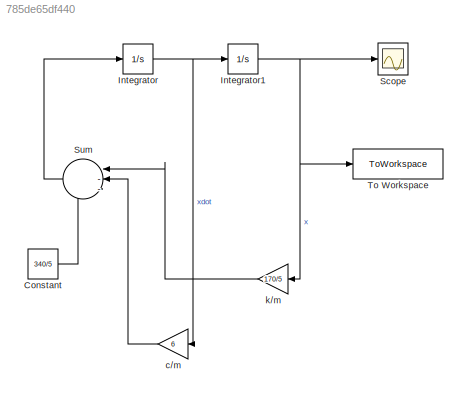
MODEL slx_785de65df440
KIND model
CONFIG AbsTol = auto
CONFIG EnableMultiTasking = off
CONFIG FixedStep = 0.02
CONFIG MaxStep = auto
CONFIG MinStep = auto
CONFIG RelTol = 1e-3
CONFIG SampleTimeConstraint = Unconstrained
CONFIG SolverName = FixedStepAuto
CONFIG StartTime = 0.0
CONFIG StopTime = 3
BLOCK [Constant] Constant
  Value = 340/5
BLOCK [Integrator] Integrator
BLOCK [Integrator] Integrator1
BLOCK [Scope] Scope
  Floating = off
  NumInputPorts = 1
  ScopeSpecificationString = Simulink.scopes.TimeScopeBlockCfg('CurrentConfiguration', extmgr.ConfigurationSet(extmgr.Configuration('Core','General UI',true),extmgr.Configuration('Core','Source UI',true),extmgr.Configuration('Sources','WiredSimulink',true),extmgr.Configuration('Visuals','Time Domain',true,'SerializedDisplays',{struct('MinYLimReal','-0.28791','MaxYLimReal','2.59121','YLabelReal','','MinYLimMag','0.00000','MaxY...<+1347ch>
BLOCK [Sum] Sum
  Inputs = |--+
  NameLocation = top
BLOCK [ToWorkspace] To Workspace
  FixptAsFi = on
  MaxDataPoints = inf
  SampleTime = -1
  VariableName = simout
BLOCK [Gain] c//m
  Gain = 6
  NameLocation = top
BLOCK [Gain] k//m
  Gain = 170/5
  NameLocation = top
LINE Constant:1 -> Sum:3
NET Integrator1:1 -> Scope:1, To Workspace:1, k//m:1
NET Integrator:1 -> Integrator1:1, c//m:1
LINE Sum:1 -> Integrator:1
LINE c//m:1 -> Sum:2
LINE k//m:1 -> Sum:1
note: NET lines group one-source signal fan-out (src -> all destinations, sorted); 1:1 wires keep LINE
